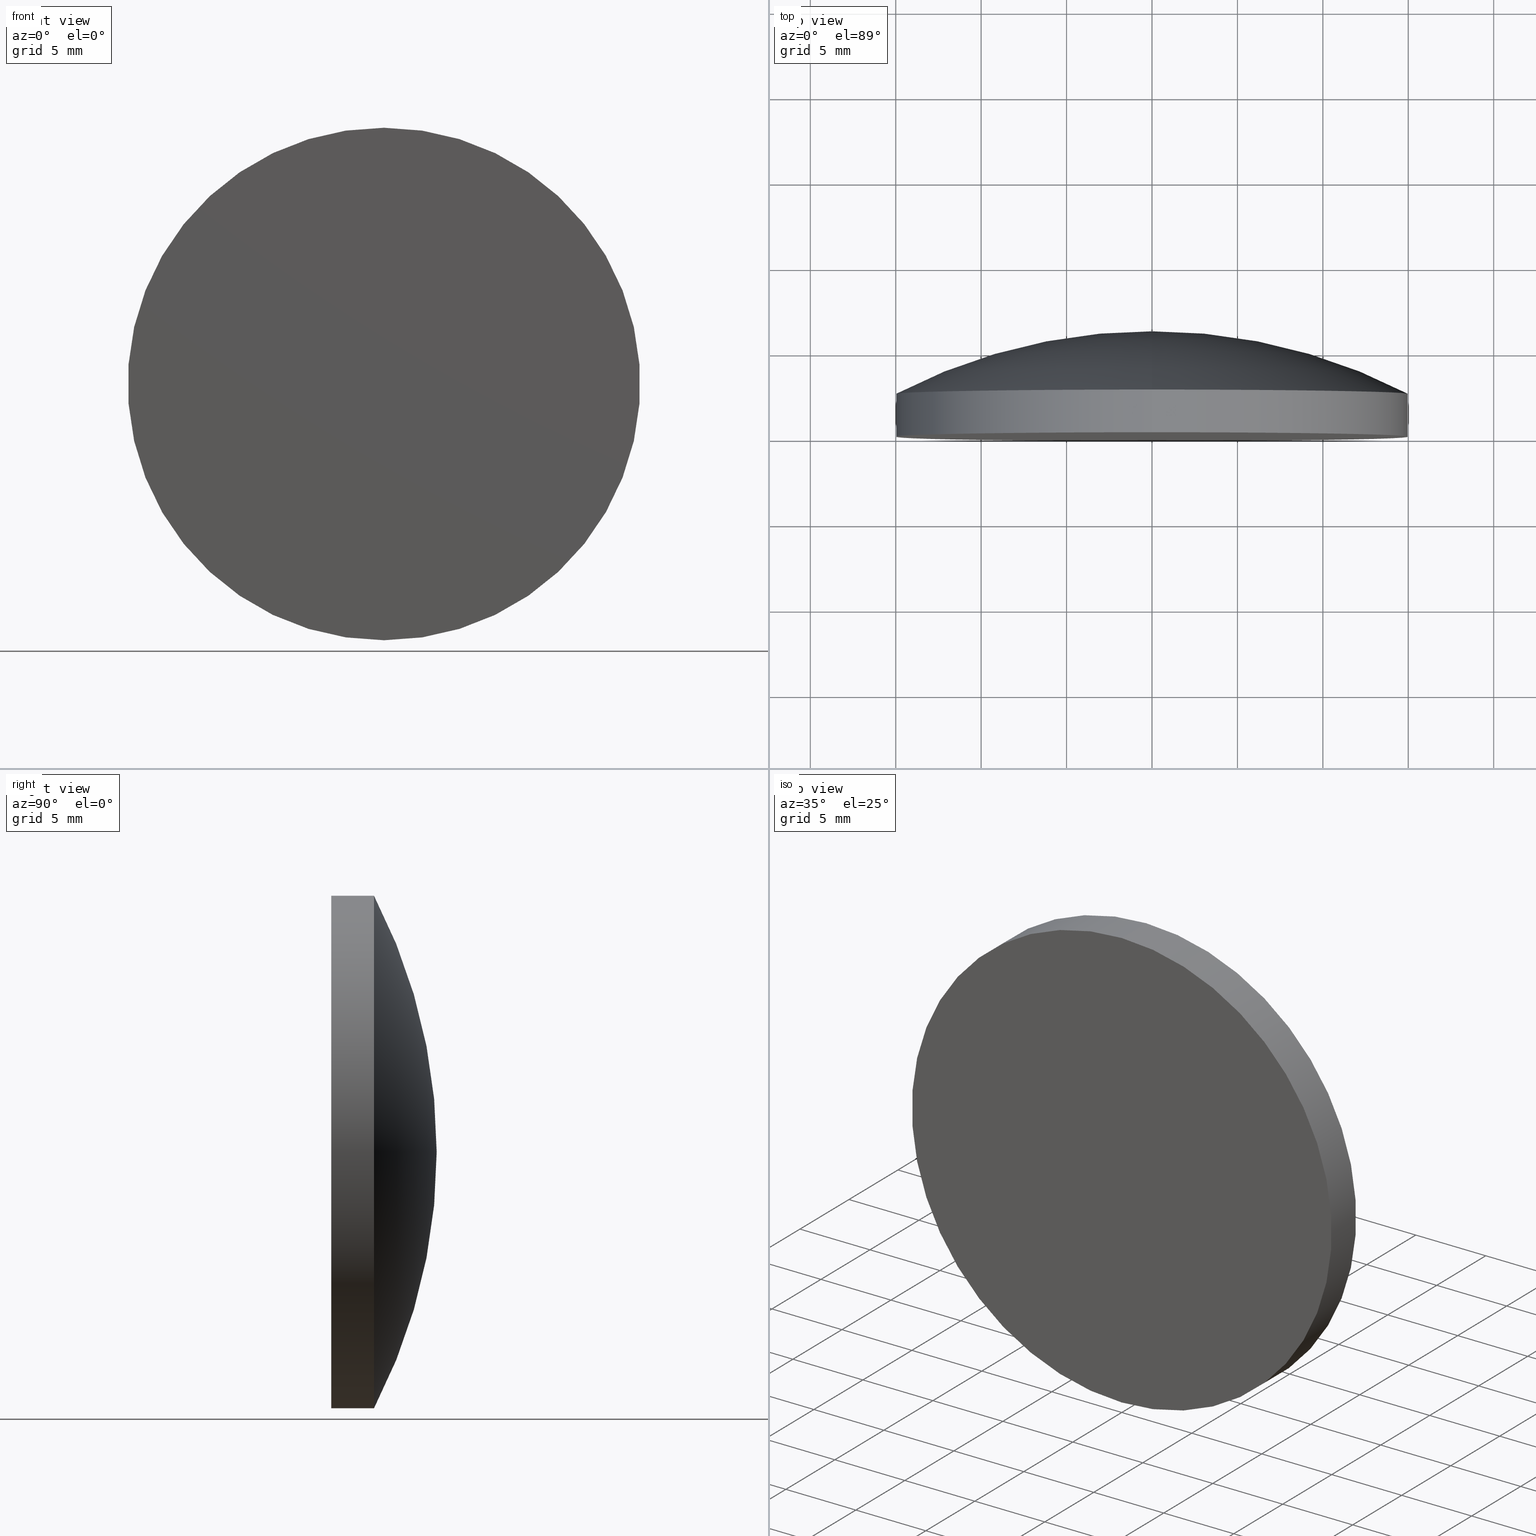
[diagram: canonical four-view strip — front | top / right | iso, engineering-drawing reading convention]
A machine part, canonical four-view strip (front | top / right | iso — engineering-drawing reading convention). The complete STEP part file that produces these views, byte-faithful:
ISO-10303-21;
HEADER;
FILE_DESCRIPTION (( 'STEP AP203' ),
    '1' );
FILE_NAME ('100596.STEP',
    '2024-05-10T01:55:56',
    ( '' ),
    ( '' ),
    'SwSTEP 2.0',
    'SolidWorks 2020',
    '' );
FILE_SCHEMA (( 'CONFIG_CONTROL_DESIGN' ));
ENDSEC;

DATA;
#1 = LOCAL_TIME ( 9, 55, 56.00000000000000000, #86 ) ;
#2 = AXIS2_PLACEMENT_3D ( 'NONE', #6, #187, #19 ) ;
#3 = DIRECTION ( 'NONE',  ( 0.000000000000000000, 0.000000000000000000, 1.000000000000000000 ) ) ;
#4 = ADVANCED_FACE ( 'NONE', ( #164 ), #148, .T. ) ;
#5 = COORDINATED_UNIVERSAL_TIME_OFFSET ( 8, 0, .AHEAD. ) ;
#6 = CARTESIAN_POINT ( 'NONE',  ( 0.000000000000000000, -1.734723475976807094E-15, 0.000000000000000000 ) ) ;
#7 = CALENDAR_DATE ( 2024, 10, 5 ) ;
#8 = CC_DESIGN_PERSON_AND_ORGANIZATION_ASSIGNMENT ( #128, #59, ( #23 ) ) ;
#9 = DATE_TIME_ROLE ( 'creation_date' ) ;
#10 = ORIENTED_EDGE ( 'NONE', *, *, #95, .F. ) ;
#11 = PERSON ( 'δָ��', 'δָ��', 'δָ��', ('δָ��'), ('δָ��'), ('δָ��') ) ;
#12 = DIRECTION ( 'NONE',  ( 0.000000000000000000, -0.000000000000000000, -1.000000000000000000 ) ) ;
#13 = CC_DESIGN_PERSON_AND_ORGANIZATION_ASSIGNMENT ( #142, #123, ( #146 ) ) ;
#14 = PERSON_AND_ORGANIZATION ( #11, #112 ) ;
#15 = CARTESIAN_POINT ( 'NONE',  ( 0.000000000000000000, 6.169999999999999929, 0.000000000000000000 ) ) ;
#16 = EDGE_CURVE ( 'NONE', #127, #126, #196, .T. ) ;
#17 = DIRECTION ( 'NONE',  ( -0.000000000000000000, 1.000000000000000000, -0.000000000000000000 ) ) ;
#18 = CIRCLE ( 'NONE', #125, 15.00000000000000000 ) ;
#19 = DIRECTION ( 'NONE',  ( 0.000000000000000000, 0.000000000000000000, 1.000000000000000000 ) ) ;
#20 = DESIGN_CONTEXT ( 'detailed design', #40, 'design' ) ;
#21 = CARTESIAN_POINT ( 'NONE',  ( 0.000000000000000000, 2.499999999999998224, 0.000000000000000000 ) ) ;
#22 = CC_DESIGN_PERSON_AND_ORGANIZATION_ASSIGNMENT ( #175, #54, ( #141 ) ) ;
#23 = SECURITY_CLASSIFICATION ( '', '', #106 ) ;
#24 = AXIS2_PLACEMENT_3D ( 'NONE', #48, #66, #33 ) ;
#25 = APPROVAL_DATE_TIME ( #171, #198 ) ;
#26 = EDGE_CURVE ( 'NONE', #127, #57, #153, .T. ) ;
#27 = ORIENTED_EDGE ( 'NONE', *, *, #157, .T. ) ;
#28 = CALENDAR_DATE ( 2024, 10, 5 ) ;
#29 = APPLICATION_CONTEXT ( 'configuration controlled 3d designs of mechanical parts and assemblies' ) ;
#30 = CC_DESIGN_DATE_AND_TIME_ASSIGNMENT ( #98, #9, ( #141 ) ) ;
#31 = DIRECTION ( 'NONE',  ( -0.000000000000000000, 1.000000000000000000, -0.000000000000000000 ) ) ;
#32 = DIRECTION ( 'NONE',  ( 0.000000000000000000, 0.000000000000000000, 1.000000000000000000 ) ) ;
#33 = DIRECTION ( 'NONE',  ( 0.000000000000000000, 0.000000000000000000, 1.000000000000000000 ) ) ;
#34 = DIRECTION ( 'NONE',  ( 0.000000000000000000, 0.000000000000000000, 1.000000000000000000 ) ) ;
#35 =( NAMED_UNIT ( * ) PLANE_ANGLE_UNIT ( ) SI_UNIT ( $, .RADIAN. ) );
#36 = DIRECTION ( 'NONE',  ( 0.000000000000000000, 0.000000000000000000, 1.000000000000000000 ) ) ;
#37 = FACE_OUTER_BOUND ( 'NONE', #88, .T. ) ;
#38 = CIRCLE ( 'NONE', #2, 15.00000000000000000 ) ;
#39 = ORIENTED_EDGE ( 'NONE', *, *, #95, .T. ) ;
#40 = APPLICATION_CONTEXT ( 'configuration controlled 3d designs of mechanical parts and assemblies' ) ;
#41 = LOCAL_TIME ( 9, 55, 56.00000000000000000, #172 ) ;
#42 = APPROVAL_ROLE ( '' ) ;
#43 = ORIENTED_EDGE ( 'NONE', *, *, #157, .F. ) ;
#44 = EDGE_LOOP ( 'NONE', ( #71, #92, #43, #10 ) ) ;
#45 = ORIENTED_EDGE ( 'NONE', *, *, #185, .F. ) ;
#46 = AXIS2_PLACEMENT_3D ( 'NONE', #168, #34, #80 ) ;
#47 = CC_DESIGN_PERSON_AND_ORGANIZATION_ASSIGNMENT ( #191, #89, ( #146 ) ) ;
#48 = CARTESIAN_POINT ( 'NONE',  ( 0.000000000000000000, -26.32999988757135768, -0.002703305825794977135 ) ) ;
#49 = FACE_OUTER_BOUND ( 'NONE', #44, .T. ) ;
#50 = FACE_OUTER_BOUND ( 'NONE', #197, .T. ) ;
#51 = DIRECTION ( 'NONE',  ( -0.000000000000000000, 1.000000000000000000, -0.000000000000000000 ) ) ;
#52 = APPROVAL_DATE_TIME ( #188, #169 ) ;
#53 = PRODUCT_DEFINITION_SHAPE ( 'NONE', 'NONE',  #141 ) ;
#54 = PERSON_AND_ORGANIZATION_ROLE ( 'creator' ) ;
#55 = PERSON_AND_ORGANIZATION_ROLE ( 'design_owner' ) ;
#56 = VERTEX_POINT ( 'NONE', #116 ) ;
#57 = VERTEX_POINT ( 'NONE', #178 ) ;
#58 = EDGE_CURVE ( 'NONE', #57, #126, #139, .T. ) ;
#59 = PERSON_AND_ORGANIZATION_ROLE ( 'classification_officer' ) ;
#60 = ORIENTED_EDGE ( 'NONE', *, *, #16, .T. ) ;
#61 = CARTESIAN_POINT ( 'NONE',  ( 1.836970198721030378E-15, 2.499999999999998668, -15.00000000000000711 ) ) ;
#62 = DIRECTION ( 'NONE',  ( 1.000000000000000000, 0.000000000000000000, 1.224646799147353207E-16 ) ) ;
#63 = LOCAL_TIME ( 9, 55, 56.00000000000000000, #5 ) ;
#64 = CARTESIAN_POINT ( 'NONE',  ( 0.000000000000000000, -1.734723475976807094E-15, 15.00000000000000000 ) ) ;
#65 = UNCERTAINTY_MEASURE_WITH_UNIT (LENGTH_MEASURE( 1.000000000000000082E-05 ), #200, 'distance_accuracy_value', 'NONE');
#66 = DIRECTION ( 'NONE',  ( -1.000000000000000000, 0.000000000000000000, 0.000000000000000000 ) ) ;
#67 = EDGE_LOOP ( 'NONE', ( #143, #114 ) ) ;
#68 = PRODUCT ( '100596', '100596', '', ( #83 ) ) ;
#69 = LOCAL_TIME ( 9, 55, 56.00000000000000000, #115 ) ;
#70 = COORDINATED_UNIVERSAL_TIME_OFFSET ( 8, 0, .AHEAD. ) ;
#71 = ORIENTED_EDGE ( 'NONE', *, *, #121, .T. ) ;
#72 = ORIENTED_EDGE ( 'NONE', *, *, #26, .F. ) ;
#73 = EDGE_CURVE ( 'NONE', #56, #194, #18, .T. ) ;
#74 = CARTESIAN_POINT ( 'NONE',  ( 0.000000000000000000, 2.499999999999998224, 0.000000000000000000 ) ) ;
#75 =( GEOMETRIC_REPRESENTATION_CONTEXT ( 3 ) GLOBAL_UNCERTAINTY_ASSIGNED_CONTEXT ( ( #65 ) ) GLOBAL_UNIT_ASSIGNED_CONTEXT ( ( #200, #35, #180 ) ) REPRESENTATION_CONTEXT ( 'NONE', 'WORKASPACE' ) );
#76 = CALENDAR_DATE ( 2024, 10, 5 ) ;
#77 = CARTESIAN_POINT ( 'NONE',  ( 0.000000000000000000, -9.184850993605147944E-16, 0.000000000000000000 ) ) ;
#78 = DIRECTION ( 'NONE',  ( 0.000000000000000000, 0.000000000000000000, 1.000000000000000000 ) ) ;
#79 = DIRECTION ( 'NONE',  ( -0.000000000000000000, 1.000000000000000000, -0.000000000000000000 ) ) ;
#80 = DIRECTION ( 'NONE',  ( 1.000000000000000000, 0.000000000000000000, 0.000000000000000000 ) ) ;
#81 = CC_DESIGN_APPROVAL ( #198, ( #141 ) ) ;
#82 = AXIS2_PLACEMENT_3D ( 'NONE', #151, #51, #3 ) ;
#83 = MECHANICAL_CONTEXT ( 'NONE', #29, 'mechanical' ) ;
#84 = APPROVAL ( #140, 'δָ��' ) ;
#85 = DIRECTION ( 'NONE',  ( -0.000000000000000000, 1.000000000000000000, -0.000000000000000000 ) ) ;
#86 = COORDINATED_UNIVERSAL_TIME_OFFSET ( 8, 0, .AHEAD. ) ;
#87 = APPLICATION_PROTOCOL_DEFINITION ( 'international standard', 'config_control_design', 1994, #40 ) ;
#88 = EDGE_LOOP ( 'NONE', ( #45, #124, #39, #72 ) ) ;
#89 = PERSON_AND_ORGANIZATION_ROLE ( 'design_supplier' ) ;
#90 = ADVANCED_FACE ( 'NONE', ( #37 ), #150, .T. ) ;
#91 = DATE_AND_TIME ( #28, #165 ) ;
#92 = ORIENTED_EDGE ( 'NONE', *, *, #185, .T. ) ;
#93 = CYLINDRICAL_SURFACE ( 'NONE', #199, 15.00000000000000000 ) ;
#94 = ADVANCED_FACE ( 'NONE', ( #134 ), #117, .T. ) ;
#95 = EDGE_CURVE ( 'NONE', #194, #57, #136, .T. ) ;
#96 = CARTESIAN_POINT ( 'NONE',  ( 0.000000000000000000, -1.734723475976807094E-15, 0.000000000000000000 ) ) ;
#97 = CARTESIAN_POINT ( 'NONE',  ( 0.000000000000000000, 6.169999999999999929, 0.000000000000000000 ) ) ;
#98 = DATE_AND_TIME ( #7, #1 ) ;
#99 = APPROVAL_PERSON_ORGANIZATION ( #14, #169, #119 ) ;
#100 = PERSON_AND_ORGANIZATION ( #11, #112 ) ;
#101 = PRODUCT_RELATED_PRODUCT_CATEGORY ( 'detail', '', ( #68 ) ) ;
#102 = APPROVAL_PERSON_ORGANIZATION ( #158, #84, #161 ) ;
#103 = ADVANCED_BREP_SHAPE_REPRESENTATION ( '100596', ( #167, #46 ), #75 ) ;
#104 = EDGE_LOOP ( 'NONE', ( #27, #60, #145 ) ) ;
#105 = AXIS2_PLACEMENT_3D ( 'NONE', #154, #120, #32 ) ;
#106 = SECURITY_CLASSIFICATION_LEVEL ( 'unclassified' ) ;
#107 = CALENDAR_DATE ( 2024, 10, 5 ) ;
#108 = CC_DESIGN_APPROVAL ( #84, ( #146 ) ) ;
#109 = DATE_TIME_ROLE ( 'classification_date' ) ;
#110 = AXIS2_PLACEMENT_3D ( 'NONE', #149, #62, #183 ) ;
#111 = DIRECTION ( 'NONE',  ( -0.000000000000000000, 1.000000000000000000, -0.000000000000000000 ) ) ;
#112 = ORGANIZATION ( 'δָ��', 'δָ��', '' ) ;
#113 = TOROIDAL_SURFACE ( 'NONE', #82, -0.002703305825794977135, 32.50000000000001421 ) ;
#114 = ORIENTED_EDGE ( 'NONE', *, *, #73, .F. ) ;
#115 = COORDINATED_UNIVERSAL_TIME_OFFSET ( 8, 0, .AHEAD. ) ;
#116 = CARTESIAN_POINT ( 'NONE',  ( 1.836970198721029589E-15, -1.734723475976807094E-15, -15.00000000000000000 ) ) ;
#117 = TOROIDAL_SURFACE ( 'NONE', #105, -0.002703305825794977135, 32.50000000000001421 ) ;
#118 = CARTESIAN_POINT ( 'NONE',  ( 0.000000000000000000, 6.169999999999999929, 0.000000000000000000 ) ) ;
#119 = APPROVAL_ROLE ( '' ) ;
#120 = DIRECTION ( 'NONE',  ( -0.000000000000000000, 1.000000000000000000, -0.000000000000000000 ) ) ;
#121 = EDGE_CURVE ( 'NONE', #194, #56, #38, .T. ) ;
#122 = VECTOR ( 'NONE', #184, 1000.000000000000000 ) ;
#123 = PERSON_AND_ORGANIZATION_ROLE ( 'creator' ) ;
#124 = ORIENTED_EDGE ( 'NONE', *, *, #73, .T. ) ;
#125 = AXIS2_PLACEMENT_3D ( 'NONE', #96, #79, #36 ) ;
#126 = VERTEX_POINT ( 'NONE', #15 ) ;
#127 = VERTEX_POINT ( 'NONE', #61 ) ;
#128 = PERSON_AND_ORGANIZATION ( #11, #112 ) ;
#129 = ORIENTED_EDGE ( 'NONE', *, *, #16, .F. ) ;
#130 = ADVANCED_FACE ( 'NONE', ( #50 ), #113, .T. ) ;
#131 = DIRECTION ( 'NONE',  ( 0.000000000000000000, 0.000000000000000000, 1.000000000000000000 ) ) ;
#132 = DIRECTION ( 'NONE',  ( 0.000000000000000000, -1.000000000000000000, 0.000000000000000000 ) ) ;
#133 = CARTESIAN_POINT ( 'NONE',  ( 1.836970198721029589E-15, 6.169999999999999929, -15.00000000000000000 ) ) ;
#134 = FACE_OUTER_BOUND ( 'NONE', #104, .T. ) ;
#135 = CLOSED_SHELL ( 'NONE', ( #162, #94, #130, #4, #90 ) ) ;
#136 = LINE ( 'NONE', #179, #122 ) ;
#137 = DATE_AND_TIME ( #107, #69 ) ;
#138 = DIRECTION ( 'NONE',  ( 0.000000000000000000, 0.000000000000000000, 1.000000000000000000 ) ) ;
#139 = CIRCLE ( 'NONE', #24, 32.50000000000001421 ) ;
#140 = APPROVAL_STATUS ( 'not_yet_approved' ) ;
#141 = PRODUCT_DEFINITION ( 'δ֪', '', #146, #20 ) ;
#142 = PERSON_AND_ORGANIZATION ( #11, #112 ) ;
#143 = ORIENTED_EDGE ( 'NONE', *, *, #121, .F. ) ;
#144 = CC_DESIGN_SECURITY_CLASSIFICATION ( #23, ( #146 ) ) ;
#145 = ORIENTED_EDGE ( 'NONE', *, *, #58, .F. ) ;
#146 = PRODUCT_DEFINITION_FORMATION_WITH_SPECIFIED_SOURCE ( '�κ�', '', #68, .NOT_KNOWN. ) ;
#147 = AXIS2_PLACEMENT_3D ( 'NONE', #77, #132, #12 ) ;
#148 = PLANE ( 'NONE',  #147 ) ;
#149 = CARTESIAN_POINT ( 'NONE',  ( -3.310594826676211474E-19, -26.32999988757135768, 0.002703305825794977135 ) ) ;
#150 = CYLINDRICAL_SURFACE ( 'NONE', #159, 15.00000000000000000 ) ;
#151 = CARTESIAN_POINT ( 'NONE',  ( 0.000000000000000000, -26.32999988757135768, 0.000000000000000000 ) ) ;
#152 = SHAPE_DEFINITION_REPRESENTATION ( #53, #103 ) ;
#153 = CIRCLE ( 'NONE', #173, 15.00000000000000000 ) ;
#154 = CARTESIAN_POINT ( 'NONE',  ( 0.000000000000000000, -26.32999988757135768, 0.000000000000000000 ) ) ;
#155 = APPLICATION_PROTOCOL_DEFINITION ( 'international standard', 'config_control_design', 1994, #29 ) ;
#156 = DIRECTION ( 'NONE',  ( 0.000000000000000000, 0.000000000000000000, 1.000000000000000000 ) ) ;
#157 = EDGE_CURVE ( 'NONE', #57, #127, #190, .T. ) ;
#158 = PERSON_AND_ORGANIZATION ( #11, #112 ) ;
#159 = AXIS2_PLACEMENT_3D ( 'NONE', #97, #111, #156 ) ;
#160 = CC_DESIGN_DATE_AND_TIME_ASSIGNMENT ( #137, #109, ( #23 ) ) ;
#161 = APPROVAL_ROLE ( '' ) ;
#162 = ADVANCED_FACE ( 'NONE', ( #49 ), #93, .T. ) ;
#163 = ORIENTED_EDGE ( 'NONE', *, *, #26, .T. ) ;
#164 = FACE_OUTER_BOUND ( 'NONE', #67, .T. ) ;
#165 = LOCAL_TIME ( 9, 55, 56.00000000000000000, #70 ) ;
#166 = CC_DESIGN_PERSON_AND_ORGANIZATION_ASSIGNMENT ( #186, #55, ( #68 ) ) ;
#167 = MANIFOLD_SOLID_BREP ( '��ת1', #135 ) ;
#168 = CARTESIAN_POINT ( 'NONE',  ( 0.000000000000000000, 0.000000000000000000, 0.000000000000000000 ) ) ;
#169 = APPROVAL ( #170, 'δָ��' ) ;
#170 = APPROVAL_STATUS ( 'not_yet_approved' ) ;
#171 = DATE_AND_TIME ( #189, #41 ) ;
#172 = COORDINATED_UNIVERSAL_TIME_OFFSET ( 8, 0, .AHEAD. ) ;
#173 = AXIS2_PLACEMENT_3D ( 'NONE', #74, #31, #131 ) ;
#174 = APPROVAL_DATE_TIME ( #91, #84 ) ;
#175 = PERSON_AND_ORGANIZATION ( #11, #112 ) ;
#176 = CC_DESIGN_APPROVAL ( #169, ( #23 ) ) ;
#177 = VECTOR ( 'NONE', #181, 1000.000000000000000 ) ;
#178 = CARTESIAN_POINT ( 'NONE',  ( 0.000000000000000000, 2.499999999999998668, 15.00000000000000711 ) ) ;
#179 = CARTESIAN_POINT ( 'NONE',  ( 0.000000000000000000, 6.169999999999999929, 15.00000000000000000 ) ) ;
#180 =( NAMED_UNIT ( * ) SI_UNIT ( $, .STERADIAN. ) SOLID_ANGLE_UNIT ( ) );
#181 = DIRECTION ( 'NONE',  ( -0.000000000000000000, 1.000000000000000000, -0.000000000000000000 ) ) ;
#182 = AXIS2_PLACEMENT_3D ( 'NONE', #21, #85, #138 ) ;
#183 = DIRECTION ( 'NONE',  ( 1.224646799147353454E-16, 0.000000000000000000, -1.000000000000000000 ) ) ;
#184 = DIRECTION ( 'NONE',  ( -0.000000000000000000, 1.000000000000000000, -0.000000000000000000 ) ) ;
#185 = EDGE_CURVE ( 'NONE', #56, #127, #201, .T. ) ;
#186 = PERSON_AND_ORGANIZATION ( #11, #112 ) ;
#187 = DIRECTION ( 'NONE',  ( -0.000000000000000000, 1.000000000000000000, -0.000000000000000000 ) ) ;
#188 = DATE_AND_TIME ( #76, #63 ) ;
#189 = CALENDAR_DATE ( 2024, 10, 5 ) ;
#190 = CIRCLE ( 'NONE', #182, 15.00000000000000000 ) ;
#191 = PERSON_AND_ORGANIZATION ( #11, #112 ) ;
#192 = ORIENTED_EDGE ( 'NONE', *, *, #58, .T. ) ;
#193 = APPROVAL_STATUS ( 'not_yet_approved' ) ;
#194 = VERTEX_POINT ( 'NONE', #64 ) ;
#195 = APPROVAL_PERSON_ORGANIZATION ( #100, #198, #42 ) ;
#196 = CIRCLE ( 'NONE', #110, 32.50000000000001421 ) ;
#197 = EDGE_LOOP ( 'NONE', ( #129, #163, #192 ) ) ;
#198 = APPROVAL ( #193, 'δָ��' ) ;
#199 = AXIS2_PLACEMENT_3D ( 'NONE', #118, #17, #78 ) ;
#200 =( LENGTH_UNIT ( ) NAMED_UNIT ( * ) SI_UNIT ( .MILLI., .METRE. ) );
#201 = LINE ( 'NONE', #133, #177 ) ;
ENDSEC;
END-ISO-10303-21;
